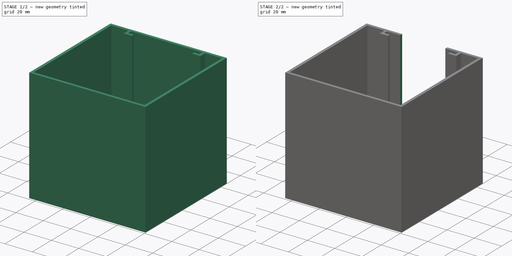
[diagram: build sequence overview — one tinted view per stage of 2, left to right]
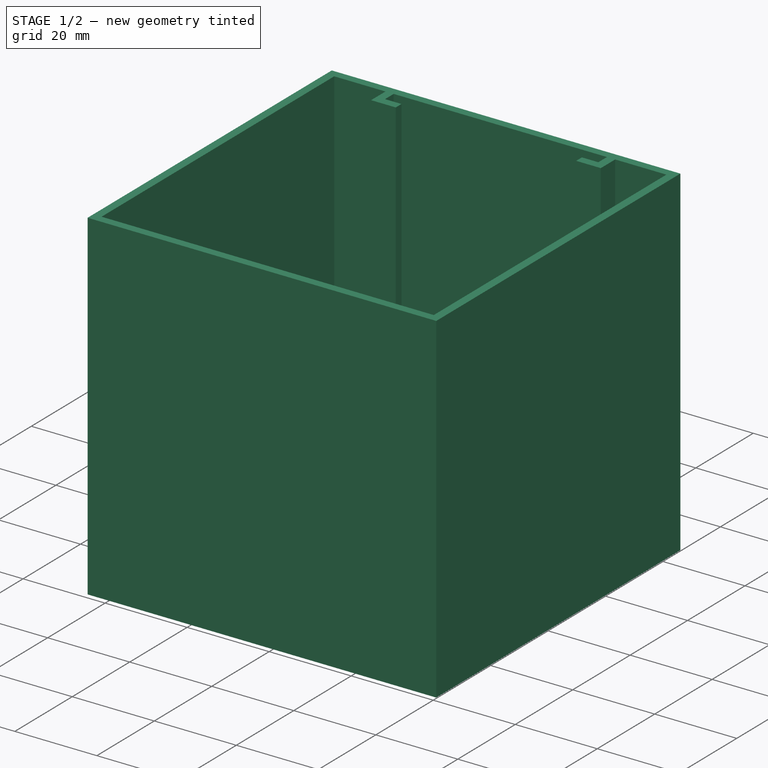
[diagram: stage 1 of 2 — iso view after this stage's code; geometry added in this stage tinted green]
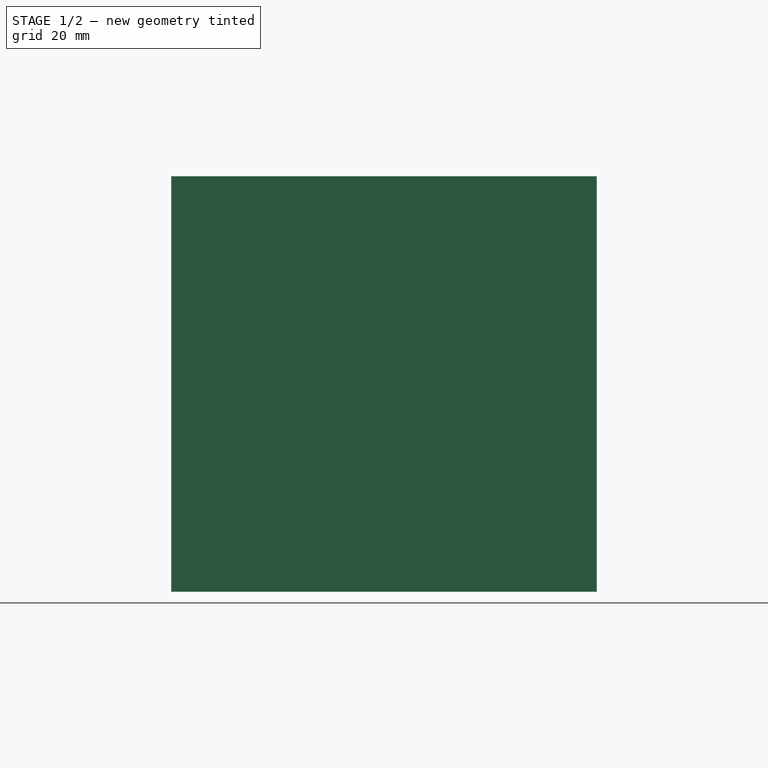
[diagram: stage 1 of 2 — front view after this stage's code; geometry added in this stage tinted green]
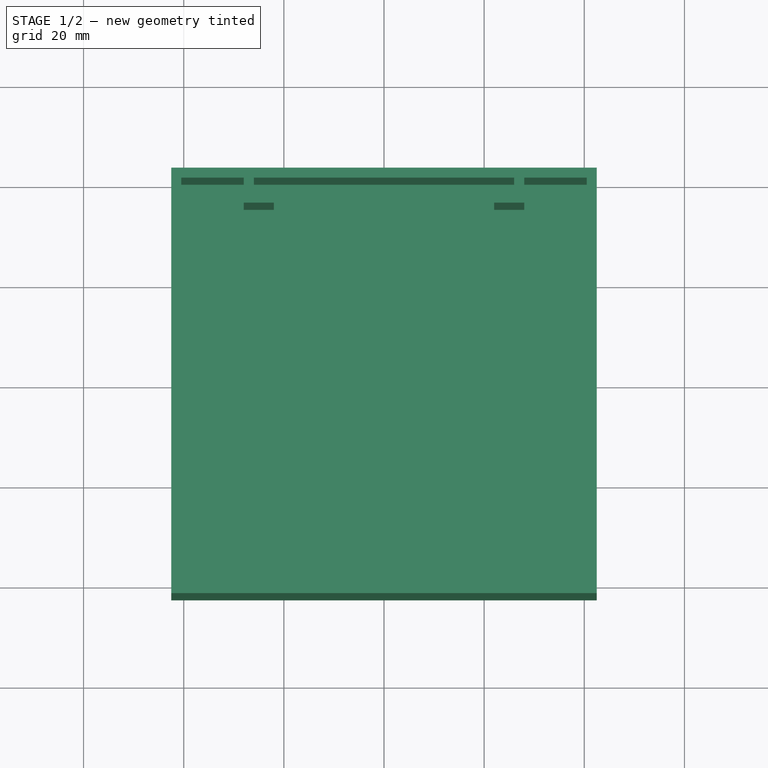
[diagram: stage 1 of 2 — top view after this stage's code; geometry added in this stage tinted green]
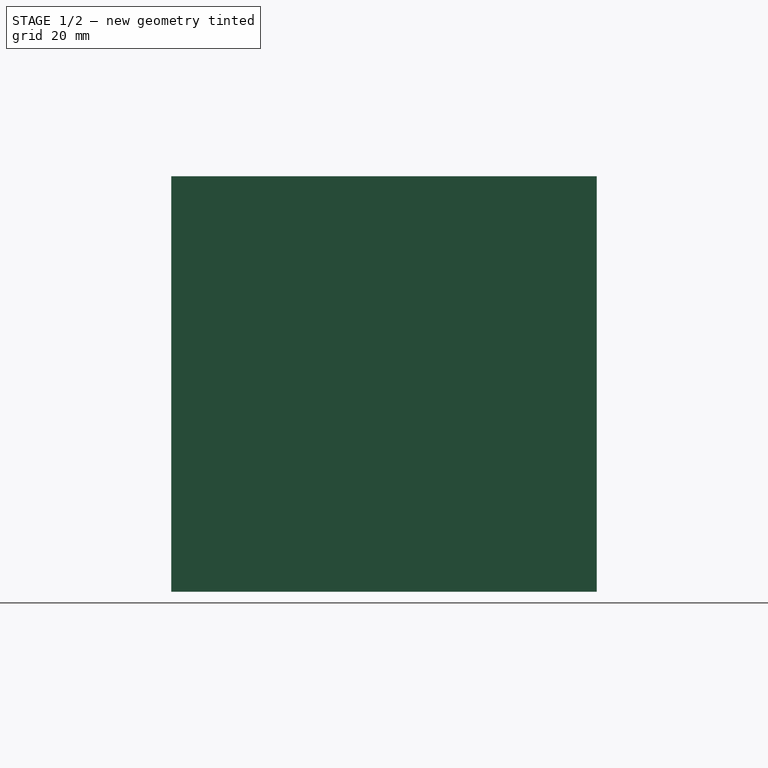
[diagram: stage 1 of 2 — right view after this stage's code; geometry added in this stage tinted green]
FCSTD DOCUMENT  (FreeCAD 0.21R33668 +26 (Git))
Label: cube
License: All rights reserved
LicenseURL: https://en.wikipedia.org/wiki/All_rights_reserved
objects: Sketcher::SketchObject×3, PartDesign::Plane×2, PartDesign::Pocket×2, PartDesign::Pad×1, PartDesign::Body×1
note: 12 computed .brp shape members not serialized (recipe doc carries the construction recipe); baked Part::Feature solids carry a one-line shape summary decoded from their .brp

FEATURE [Sketcher::SketchObject] Sketch  label="Base Sketch"
  FullyConstrained = true
  MapMode = 5
  Support = -> [XY_Plane]
  sketch-geometry (5):
    g0: LineSegment StartX=-42.5 StartY=-42.5 StartZ=0 EndX=-42.5 EndY=42.5 EndZ=0
    g1: LineSegment StartX=-42.5 StartY=42.5 StartZ=0 EndX=42.5 EndY=42.5 EndZ=0
    g2: LineSegment StartX=42.5 StartY=42.5 StartZ=0 EndX=42.5 EndY=-42.5 EndZ=0
    g3: LineSegment StartX=42.5 StartY=-42.5 StartZ=0 EndX=-42.5 EndY=-42.5 EndZ=0
    g4: GeomPoint X=0 Y=0 Z=0
  constraints (12):
    c: Coincident(g0,g1)
    c: Coincident(g1,g2)
    c: Coincident(g2,g3)
    c: Coincident(g3,g0)
    c: Horizontal(g1)
    c: Horizontal(g3)
    c: Vertical(g0)
    c: Vertical(g2)
    c: Symmetric(g1,g0,g4)
    c: Coincident(g4,g-1)
    c: DistanceY(g2,g2) = 85
    c: DistanceX(g1,g1) = 85
FEATURE [PartDesign::Pad] Pad  label="Base Pad"
  Direction = (0,0,1)
  Length = 83
  Length2 = 10
  Profile = -> Sketch
  ReferenceAxis = -> Sketch [N_Axis]
  Type = 0
FEATURE [PartDesign::Plane] DatumPlane  label="Top Plane"
  Length = 102
  MapMode = 2
  Placement = pos=(0,0,83) rot=(1,0,0;3.14159rad)
  ResizeMode = 0
  Width = 102
FEATURE [Sketcher::SketchObject] Sketch001  label="Core Sketch"
  FullyConstrained = true
  MapMode = 5
  Placement = pos=(0,0,83) rot=(1,0,0;3.14159rad)
  Support = -> [DatumPlane]
  sketch-geometry (19):
    g0: LineSegment StartX=-40.5 StartY=40.5 StartZ=0 EndX=-40.5 EndY=-40.5 EndZ=0
    g1: LineSegment StartX=-40.5 StartY=-40.5 StartZ=0 EndX=-28 EndY=-40.5 EndZ=0
    g2: LineSegment StartX=40.5 StartY=-40.5 StartZ=0 EndX=40.5 EndY=40.5 EndZ=0
    g3: LineSegment StartX=40.5 StartY=40.5 StartZ=0 EndX=-40.5 EndY=40.5 EndZ=0
    g4: GeomPoint X=0 Y=0 Z=0
    g5: LineSegment StartX=-28 StartY=-40.5 StartZ=0 EndX=-28 EndY=-35.5 EndZ=0
    g6: LineSegment StartX=-28 StartY=-35.5 StartZ=0 EndX=-22 EndY=-35.5 EndZ=0
    g7: LineSegment StartX=-22 StartY=-35.5 StartZ=0 EndX=-22 EndY=-37.5 EndZ=0
    g8: LineSegment StartX=-22 StartY=-37.5 StartZ=0 EndX=-26 EndY=-37.5 EndZ=0
    g9: LineSegment StartX=-26 StartY=-37.5 StartZ=0 EndX=-26 EndY=-40.5 EndZ=0
    g10: LineSegment StartX=26 StartY=-40.5 StartZ=0 EndX=26 EndY=-37.5 EndZ=0
    g11: LineSegment StartX=26 StartY=-37.5 StartZ=0 EndX=22 EndY=-37.5 EndZ=0
    g12: LineSegment StartX=22 StartY=-37.5 StartZ=0 EndX=22 EndY=-35.5 EndZ=0
    g13: LineSegment StartX=22 StartY=-35.5 StartZ=0 EndX=28 EndY=-35.5 EndZ=0
    g14: LineSegment StartX=28 StartY=-35.5 StartZ=0 EndX=28 EndY=-40.5 EndZ=0
    g15: LineSegment StartX=-22 StartY=-35.5 StartZ=0 EndX=0 EndY=-35.5 EndZ=0
    g16: LineSegment StartX=22 StartY=-35.5 StartZ=0 EndX=0 EndY=-35.5 EndZ=0
    g17: LineSegment StartX=-26 StartY=-40.5 StartZ=0 EndX=26 EndY=-40.5 EndZ=0
    g18: LineSegment StartX=28 StartY=-40.5 StartZ=0 EndX=40.5 EndY=-40.5 EndZ=0
  constraints (52):
    c: Coincident(g0,g1)
    c: Coincident(g18,g2)
    c: Coincident(g2,g3)
    c: Coincident(g3,g0)
    c: Horizontal(g1)
    c: Horizontal(g3)
    c: Vertical(g0)
    c: Vertical(g2)
    c: Symmetric(g18,g0,g4)
    c: Coincident(g4,g-1)
    c: DistanceY(g2,g2) = 81
    c: DistanceX(g1,g18) = 81
    c: Vertical(g5)
    c: Coincident(g5,g6)
    c: Horizontal(g6)
    c: Coincident(g6,g7)
    c: Vertical(g7)
    c: Coincident(g7,g8)
    c: Horizontal(g8)
    c: Coincident(g8,g9)
    c: PointOnObject(g10,g1)
    c: Vertical(g10)
    c: Coincident(g10,g11)
    c: Horizontal(g11)
    c: Coincident(g11,g12)
    c: Vertical(g12)
    c: Coincident(g12,g13)
    c: Horizontal(g13)
    c: Coincident(g13,g14)
    c: Vertical(g14)
    c: PointOnObject(g14,g1)
    c: DistanceX(g8,g10) = 52
    c: DistanceY(g11,g12) = 2
    c: DistanceX(g10,g13) = 2
    c: DistanceX(g5,g8) = 2
    c: Equal(g6,g13)
    c: Equal(g12,g7)
    c: Coincident(g15,g6)
    c: PointOnObject(g15,g-2)
    c: Horizontal(g15)
    c: Coincident(g16,g12)
    c: Coincident(g16,g15)
    c: Horizontal(g16)
    c: Equal(g16,g15)
    c: DistanceY(g10,g10) = 3
    c: DistanceX(g8,g7) = 4
    c: Coincident(g1,g5)
    c: Perpendicular(g17,g9) = 4.71239
    c: Coincident(g10,g17)
    c: Coincident(g14,g18)
    c: Horizontal(g18)
    c: Horizontal(g17)
FEATURE [PartDesign::Pocket] Pocket  label="Core Pocket"
  BaseFeature = -> Pad
  Direction = (0,1e-16,1)
  Length = 82
  Length2 = 5
  Profile = -> Sketch001
  ReferenceAxis = -> Sketch001 [N_Axis]
  Reversed = true
  Type = 0
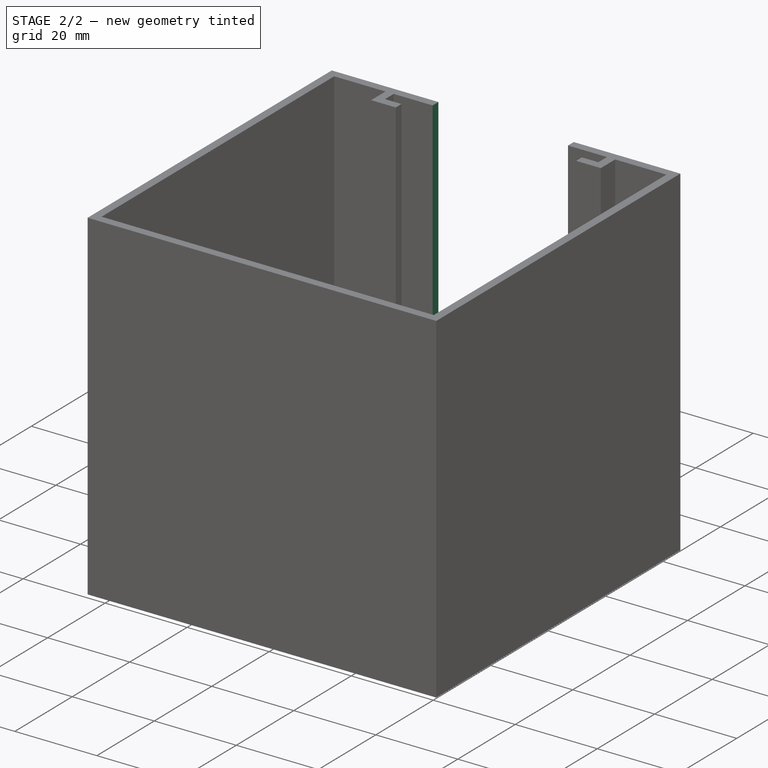
[diagram: stage 2 of 2 — iso view after this stage's code; geometry added in this stage tinted green]
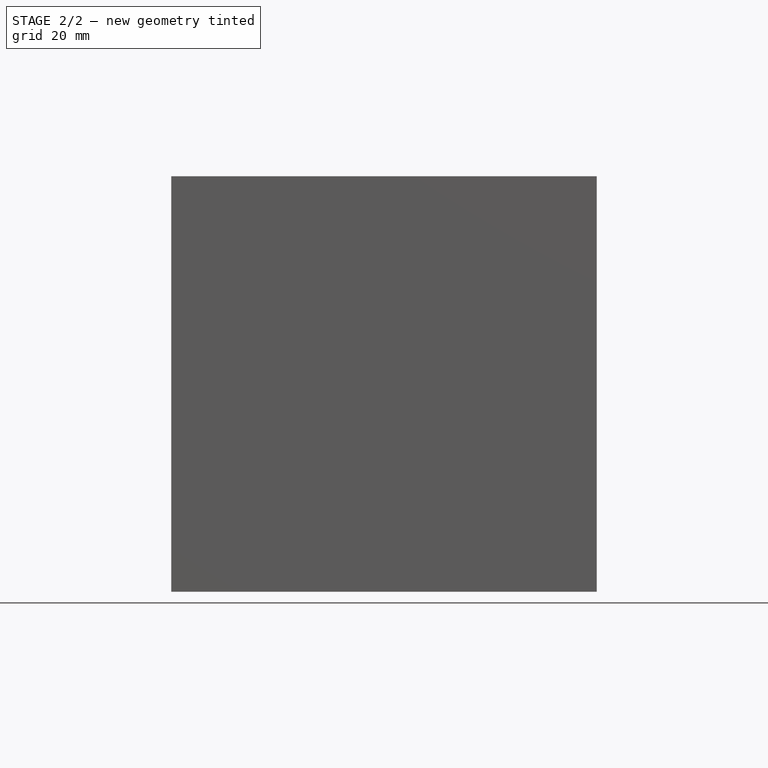
[diagram: stage 2 of 2 — front view after this stage's code; geometry added in this stage tinted green]
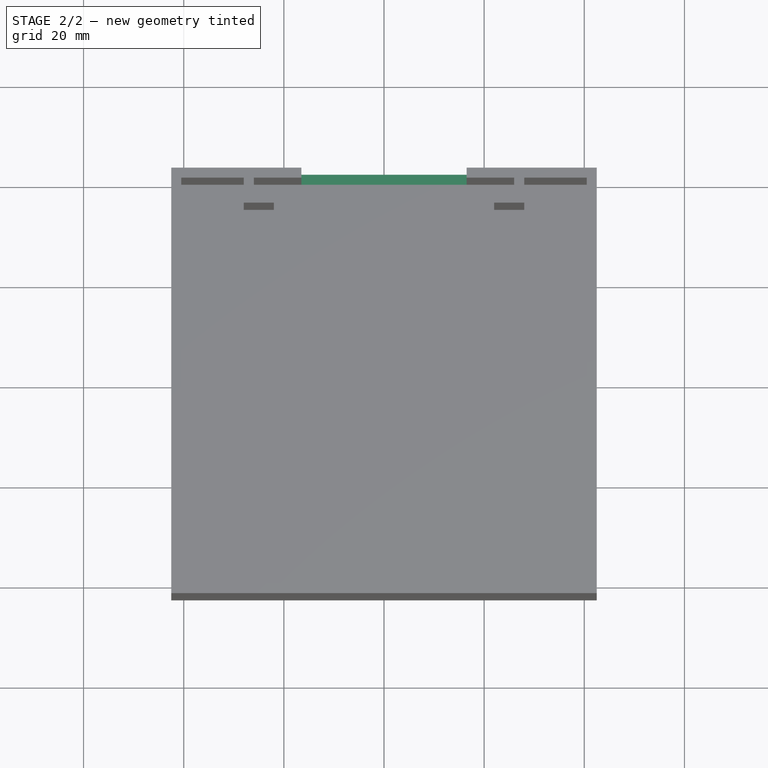
[diagram: stage 2 of 2 — top view after this stage's code; geometry added in this stage tinted green]
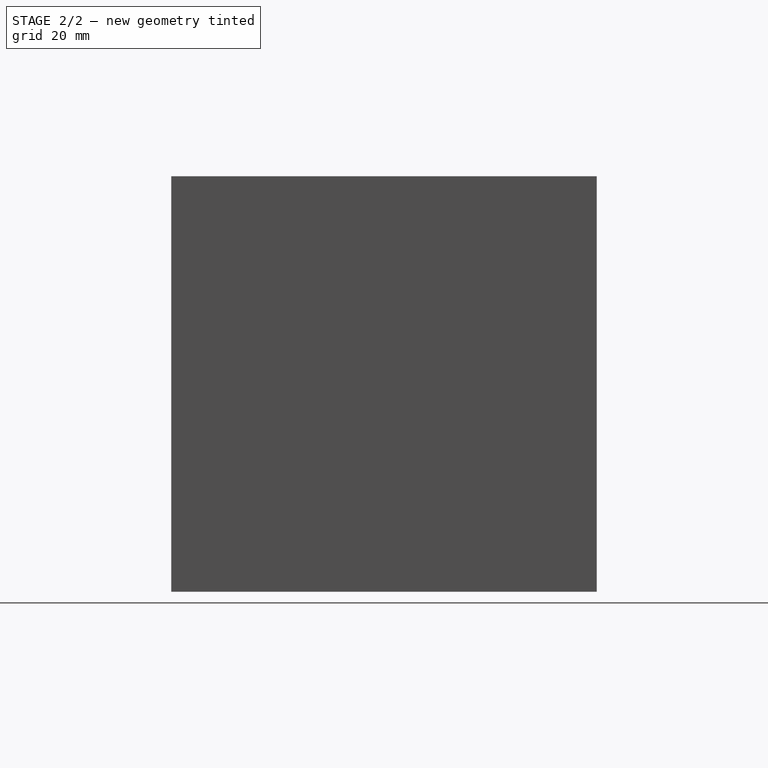
[diagram: stage 2 of 2 — right view after this stage's code; geometry added in this stage tinted green]
FEATURE [PartDesign::Plane] DatumPlane001  label="Front Plane"
  AttachmentOffset = pos=(0,0,-42.5) rot=(0,0,1;0rad)
  Length = 98.0384
  MapMode = 2
  Placement = pos=(0,42.5,-9.4e-15) rot=(1,0,0;1.5708rad)
  ResizeMode = 0
  Support = -> [XZ_Plane]
  Width = 63.0384
FEATURE [Sketcher::SketchObject] Sketch002  label="PCB Sketch"
  FullyConstrained = true
  MapMode = 5
  Placement = pos=(0,42.5,-9.4e-15) rot=(1,0,0;1.5708rad)
  Support = -> [DatumPlane001]
  sketch-geometry (5):
    g0: LineSegment StartX=-16.5 StartY=1 StartZ=0 EndX=-16.5 EndY=83 EndZ=0
    g1: LineSegment StartX=-16.5 StartY=83 StartZ=0 EndX=16.5 EndY=83 EndZ=0
    g2: LineSegment StartX=16.5 StartY=83 StartZ=0 EndX=16.5 EndY=1 EndZ=0
    g3: LineSegment StartX=16.5 StartY=1 StartZ=0 EndX=-16.5 EndY=1 EndZ=0
    g4: GeomPoint X=0 Y=42 Z=0
  constraints (13):
    c: Coincident(g0,g1)
    c: Coincident(g1,g2)
    c: Coincident(g2,g3)
    c: Coincident(g3,g0)
    c: Horizontal(g1)
    c: Horizontal(g3)
    c: Vertical(g0)
    c: Vertical(g2)
    c: Symmetric(g1,g0,g4)
    c: PointOnObject(g4,g-2)
    c: DistanceX(g1,g1) = 33
    c: DistanceY(g2,g1) = 82
    c: DistanceY(g-1,g2) = 1
FEATURE [PartDesign::Pocket] Pocket001  label="PCB Pocket"
  BaseFeature = -> Pocket
  Direction = (0,1,-2e-16)
  Length = 5
  Length2 = 5
  Profile = -> Sketch002
  ReferenceAxis = -> Sketch002 [N_Axis]
  Reversed = true
  Type = 0
FEATURE [PartDesign::Body] Body
  Group = -> [Sketch,Pad,DatumPlane,Sketch001,Pocket,DatumPlane001,Sketch002,Pocket001]
  Origin = -> Origin
  Tip = -> Pocket001
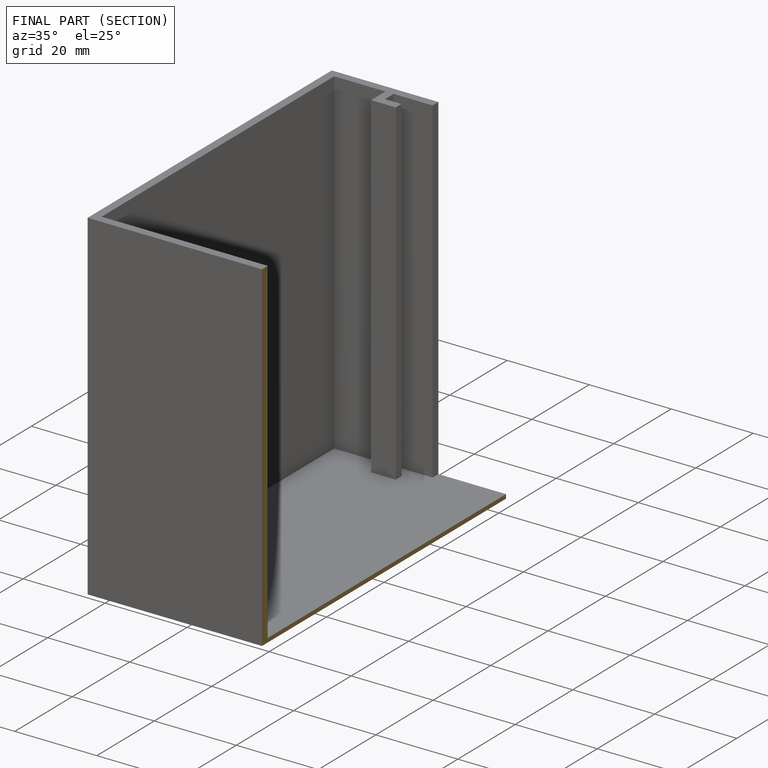
[diagram: finished part — half-section view (interior)]
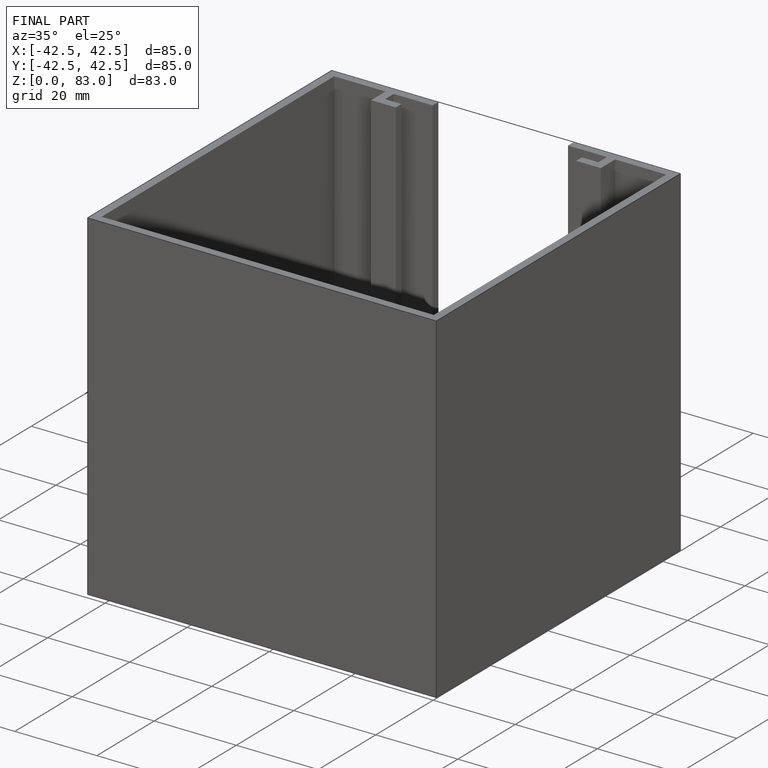
[diagram: finished part — iso view with bounding-box wireframe]
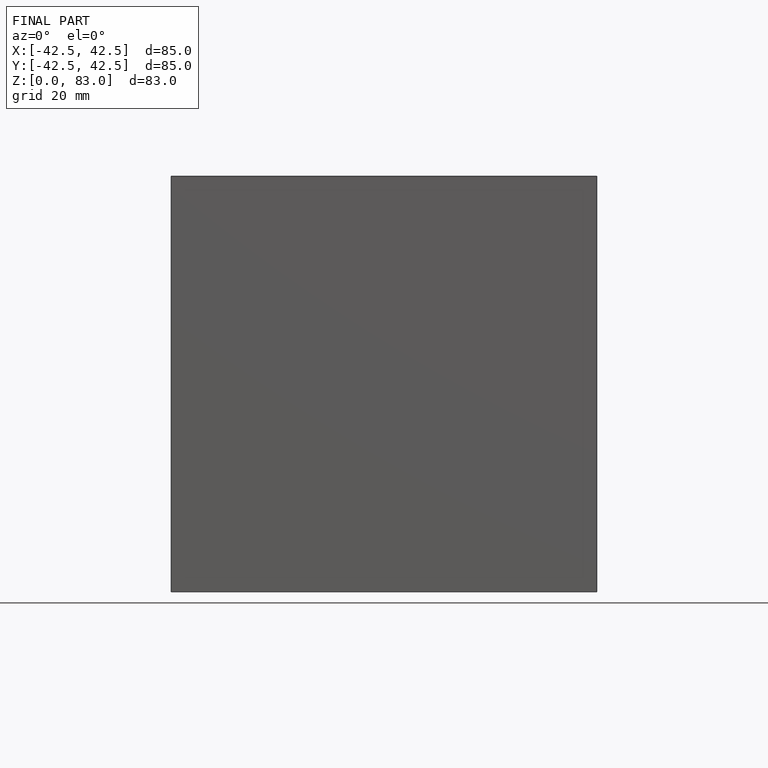
[diagram: finished part — front view with bounding-box wireframe]
